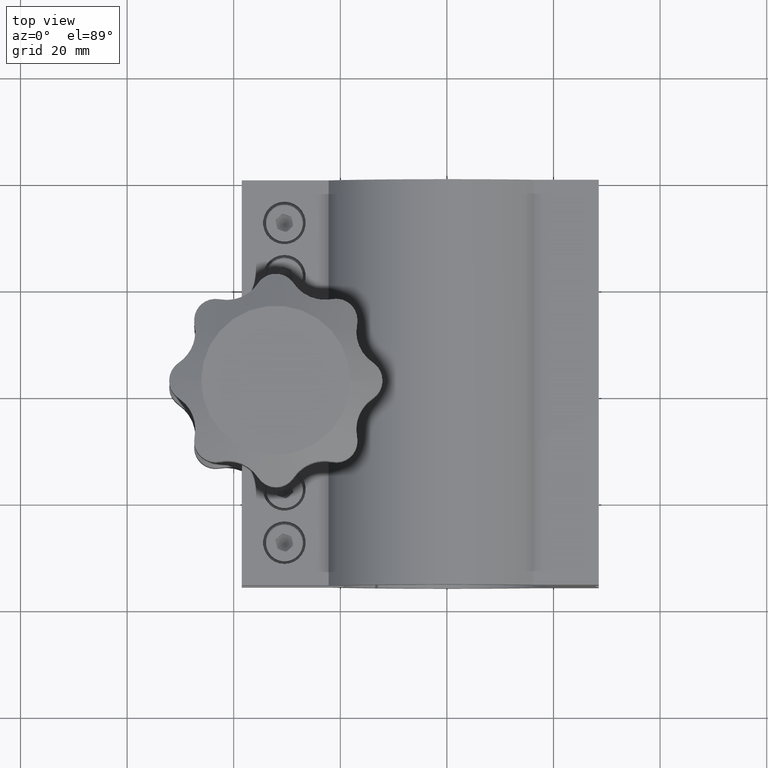
[diagram: clean part render]
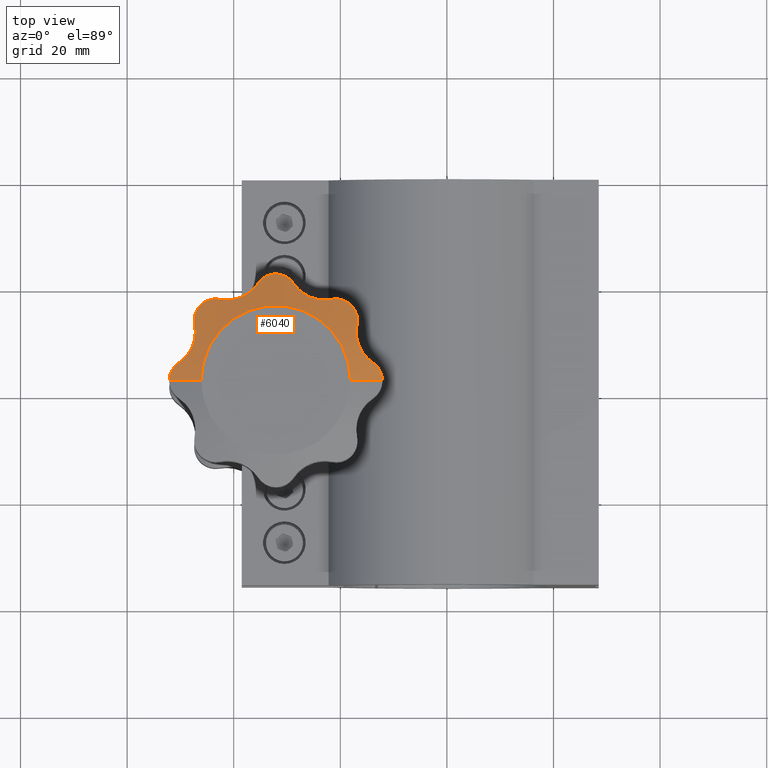
[diagram: same view with one face highlighted and labeled with its STEP entity id]
A machine part, top view. The second image highlights one B-rep face of the part: STEP entity #6040.
In plain terms, the highlighted conical surface has half-angle 63.435 deg.
Its self-contained STEP definition (entity closure, byte-faithful):
#17 = LINE ( 'NONE', #6513, #6403 ) ;
#93 = CARTESIAN_POINT ( 'NONE',  ( -32.75840555617479300, -18.05110636497569500, 37.52046013489443500 ) ) ;
#139 = DIRECTION ( 'NONE',  ( -0.8944271909999160800, 4.557184654328704800E-016, -0.4472135954999574800 ) ) ;
#198 = CARTESIAN_POINT ( 'NONE',  ( -17.29498128797715900, -24.72852698051647000, 37.55893272981340700 ) ) ;
#202 = CARTESIAN_POINT ( 'NONE',  ( -51.93334830073362700, -36.84656257091752700, 37.56690679288027500 ) ) ;
#243 = CARTESIAN_POINT ( 'NONE',  ( -47.90504890645117100, -31.92325109288683600, 39.03472159707326500 ) ) ;
#246 = CARTESIAN_POINT ( 'NONE',  ( -51.44616525070426100, -35.80293608302551400, 37.76500397221764900 ) ) ;
#285 = CARTESIAN_POINT ( 'NONE',  ( -47.56825035853536600, -31.10816862586801400, 39.03421187767023100 ) ) ;
#322 = CARTESIAN_POINT ( 'NONE',  ( -27.94840457374427000, -20.80943283846005400, 38.65869961730809500 ) ) ;
#692 = CARTESIAN_POINT ( 'NONE',  ( -47.33547936566713300, -27.47167209282341100, 38.24033585891610400 ) ) ;
#706 = EDGE_LOOP ( 'NONE', ( #2569, #6922, #10533, #2658, #2644, #6193, #1542, #1689, #4264, #2443, #8256, #4057, #7971, #4426 ) ) ;
#732 = CARTESIAN_POINT ( 'NONE',  ( -12.43301073186953200, -36.39367525027051200, 37.63407384865917700 ) ) ;
#797 = CARTESIAN_POINT ( 'NONE',  ( -30.79814125205140100, -18.21423820326806000, 37.58603638219769000 ) ) ;
#804 = CARTESIAN_POINT ( 'NONE',  ( -12.31343870608168300, -36.70036810535550100, 37.58571358947030900 ) ) ;
#826 = CARTESIAN_POINT ( 'NONE',  ( -31.76383833199643200, -18.00024806035973100, 37.50009922414819400 ) ) ;
#858 = CARTESIAN_POINT ( 'NONE',  ( -34.66672438758038100, -18.92797965623199000, 37.87824560731821300 ) ) ;
#891 = CARTESIAN_POINT ( 'NONE',  ( -46.10000000000000100, -37.99999999999999300, 40.49999999999996400 ) ) ;
#938 = CARTESIAN_POINT ( 'NONE',  ( -16.78629150101521700, -26.68629150101531500, 37.98015667156388300 ) ) ;
#960 = CARTESIAN_POINT ( 'NONE',  ( -51.88119329317201800, -36.68577337741092500, 37.58791492571297300 ) ) ;
#1012 = CARTESIAN_POINT ( 'NONE',  ( -32.09999999999994500, -38.00000000000000000, 40.49999999999996400 ) ) ;
#1032 = CARTESIAN_POINT ( 'NONE',  ( -18.02204321241740100, -23.79123233458617600, 37.49930611596541800 ) ) ;
#1033 = CARTESIAN_POINT ( 'NONE',  ( -18.09999999999989800, -38.00000000000000700, 40.49999999999996400 ) ) ;
#1065 = CARTESIAN_POINT ( 'NONE',  ( -21.25090003431771300, -22.70325044055191200, 38.12378131236729900 ) ) ;
#1116 = EDGE_CURVE ( 'NONE', #2014, #7615, #8146, .T. ) ;
#1139 = CARTESIAN_POINT ( 'NONE',  ( -24.95603898682053800, -22.64445897357253300, 39.03961434932747200 ) ) ;
#1279 = VECTOR ( 'NONE', #139, 1000.000000000000000 ) ;
#1334 = CARTESIAN_POINT ( 'NONE',  ( -14.92095314688404500, -33.87490815882829100, 38.67214230809183600 ) ) ;
#1406 = VERTEX_POINT ( 'NONE', #9871 ) ;
#1407 = EDGE_CURVE ( 'NONE', #5241, #10764, #3546, .T. ) ;
#1422 = CARTESIAN_POINT ( 'NONE',  ( -44.85279802072815200, -22.95083891127139400, 37.63736774476461700 ) ) ;
#1469 = CARTESIAN_POINT ( 'NONE',  ( -15.82382242778238400, -32.79438930931750200, 38.96184166140054800 ) ) ;
#1492 = CARTESIAN_POINT ( 'NONE',  ( -47.39795324385067900, -27.15971093928271800, 38.12596214254276100 ) ) ;
#1512 = FACE_OUTER_BOUND ( 'NONE', #706, .T. ) ;
#1542 = ORIENTED_EDGE ( 'NONE', *, *, #4671, .T. ) ;
#1656 = CARTESIAN_POINT ( 'NONE',  ( -33.23925231646453700, -18.16213688665141700, 37.56505322317966700 ) ) ;
#1689 = ORIENTED_EDGE ( 'NONE', *, *, #7601, .T. ) ;
#1707 = CARTESIAN_POINT ( 'NONE',  ( -12.65513164865497600, -35.96060845117477100, 37.72452414048564200 ) ) ;
#1734 = CARTESIAN_POINT ( 'NONE',  ( -32.43073438627175900, -18.01027900939492800, 37.50410910604374200 ) ) ;
#1761 = CARTESIAN_POINT ( 'NONE',  ( -16.78629150101521700, -26.68629150101531500, 37.98015667156388300 ) ) ;
#1766 = CARTESIAN_POINT ( 'NONE',  ( -30.95713575936925800, -18.16318857168531400, 37.56547649085300100 ) ) ;
#1835 = CARTESIAN_POINT ( 'NONE',  ( -42.62832790717669000, -22.76452063433292100, 38.24033585891610400 ) ) ;
#1877 = CARTESIAN_POINT ( 'NONE',  ( -18.13349673707107000, -23.68880557513932000, 37.50185774314765300 ) ) ;
#1881 = CARTESIAN_POINT ( 'NONE',  ( -52.09963865927252900, -37.99999999999999300, 37.50018067036367600 ) ) ;
#1882 = CARTESIAN_POINT ( 'NONE',  ( -50.82465163034928000, -35.05431335803858400, 38.02346039514766600 ) ) ;
#1913 = CARTESIAN_POINT ( 'NONE',  ( -16.94279115474832800, -25.54075307990763100, 37.69049428759792200 ) ) ;
#1917 = CARTESIAN_POINT ( 'NONE',  ( -51.53300192077797700, -35.94127359051847000, 37.72941588972657500 ) ) ;
#1937 = VERTEX_POINT ( 'NONE', #9582 ) ;
#1953 = CARTESIAN_POINT ( 'NONE',  ( -47.78056681594026900, -31.65460809510747700, 39.04337036135608200 ) ) ;
#1984 = CARTESIAN_POINT ( 'NONE',  ( -47.28702618948062800, -29.98865584032340300, 38.91577800137321900 ) ) ;
#2014 = VERTEX_POINT ( 'NONE', #5910 ) ;
#2079 = VERTEX_POINT ( 'NONE', #1033 ) ;
#2247 = CARTESIAN_POINT ( 'NONE',  ( -46.47931321446090200, -24.09531898611165700, 37.50011448571287800 ) ) ;
#2265 = AXIS2_PLACEMENT_3D ( 'NONE', #1012, #2709, #10124 ) ;
#2284 = CARTESIAN_POINT ( 'NONE',  ( -17.00881211451161000, -28.78005500583700300, 38.65869970858107500 ) ) ;
#2411 = CARTESIAN_POINT ( 'NONE',  ( -37.29467377656514100, -21.71595868580779200, 38.95968701442936300 ) ) ;
#2424 = CARTESIAN_POINT ( 'NONE',  ( -12.26273394888001700, -36.85875537139506300, 37.56529357583926300 ) ) ;
#2443 = ORIENTED_EDGE ( 'NONE', *, *, #10595, .T. ) ;
#2451 = CARTESIAN_POINT ( 'NONE',  ( -29.17884699603553500, -19.24896242957108700, 38.01230968559977400 ) ) ;
#2497 = CARTESIAN_POINT ( 'NONE',  ( -39.21091180426166300, -22.63411673686893600, 39.04180022587652800 ) ) ;
#2507 = CARTESIAN_POINT ( 'NONE',  ( -12.15151395416761000, -37.33918737790111200, 37.52062347683793300 ) ) ;
#2522 = CARTESIAN_POINT ( 'NONE',  ( -37.89220971458135500, -22.08227942649880400, 39.03813465946303300 ) ) ;
#2569 = ORIENTED_EDGE ( 'NONE', *, *, #1116, .F. ) ;
#2591 = CARTESIAN_POINT ( 'NONE',  ( -35.22739763615313500, -19.48633271645867600, 38.11267213914757700 ) ) ;
#2592 = CARTESIAN_POINT ( 'NONE',  ( -13.84647206857892200, -34.69521379476602600, 38.22485992281675500 ) ) ;
#2644 = ORIENTED_EDGE ( 'NONE', *, *, #6907, .T. ) ;
#2658 = ORIENTED_EDGE ( 'NONE', *, *, #1407, .T. ) ;
#2688 = CARTESIAN_POINT ( 'NONE',  ( -18.47935679384911400, -23.40497773994203000, 37.51941664411995000 ) ) ;
#2692 = CARTESIAN_POINT ( 'NONE',  ( -50.58263873843447600, -34.84802895879927600, 38.12591447058590400 ) ) ;
#2709 = DIRECTION ( 'NONE',  ( -5.744216728366652700E-017, 1.068136628142174300E-018, -1.000000000000000000 ) ) ;
#2795 = CARTESIAN_POINT ( 'NONE',  ( -49.85641633162009600, -34.36414461511203200, 38.43962883246744900 ) ) ;
#3015 = CARTESIAN_POINT ( 'NONE',  ( -16.78629150101521700, -26.68629150101531500, 37.98015667156388300 ) ) ;
#3017 = CARTESIAN_POINT ( 'NONE',  ( -16.19044925722366200, -32.19353673450460500, 39.03961434304864000 ) ) ;
#3028 = AXIS2_PLACEMENT_3D ( 'NONE', #7291, #8908, #10534 ) ;
#3119 = CARTESIAN_POINT ( 'NONE',  ( -16.96910337782793100, -28.09830956798036500, 38.45966632413269800 ) ) ;
#3146 = CARTESIAN_POINT ( 'NONE',  ( -45.30747206479046700, -23.15944995574653100, 37.56706851643817700 ) ) ;
#3306 = CARTESIAN_POINT ( 'NONE',  ( -36.22092508249643600, -20.81617838025024600, 38.67023647834070500 ) ) ;
#3338 = CARTESIAN_POINT ( 'NONE',  ( -32.92010242349282100, -18.08151545462373700, 37.53264634346338400 ) ) ;
#3355 = CARTESIAN_POINT ( 'NONE',  ( -13.58652559600766600, -34.87247083961992900, 38.11275532044616900 ) ) ;
#3412 = CARTESIAN_POINT ( 'NONE',  ( -28.97257494447850900, -19.48637292681023700, 38.11268948027721100 ) ) ;
#3451 = VERTEX_POINT ( 'NONE', #938 ) ;
#3480 = CARTESIAN_POINT ( 'NONE',  ( -26.89132669031026900, -21.72577786445343100, 38.96229445392982900 ) ) ;
#3522 = CARTESIAN_POINT ( 'NONE',  ( -18.72795586698635300, -23.24359436756056100, 37.54409824499433100 ) ) ;
#3546 = B_SPLINE_CURVE_WITH_KNOTS ( 'NONE', 3,
 ( #5747, #5856, #7461, #2507, #7392, #2424, #804, #732, #8239, #1707, #9930, #7428, #4980, #8349, #3355, #9174 ),
 .UNSPECIFIED., .F., .F.,
 ( 4, 2, 2, 2, 2, 2, 2, 4 ),
 ( 0.003960287535763588700, 0.004454558287999381200, 0.004948829040235172900, 0.005443099792470965400, 0.005937370544706758000, 0.006431641296942549600, 0.006925912049178341300, 0.007914453553649931600 ),
 .UNSPECIFIED. ) ;
#3599 = CARTESIAN_POINT ( 'NONE',  ( -47.48044118487156600, -30.83155257149978100, 39.01670993358917600 ) ) ;
#3822 = CARTESIAN_POINT ( 'NONE',  ( -20.10427503861102500, -22.73410328289348200, 37.79336269671950500 ) ) ;
#3900 = CARTESIAN_POINT ( 'NONE',  ( -47.24538852200786500, -27.92153760987734800, 38.40526918625391100 ) ) ;
#3918 = CARTESIAN_POINT ( 'NONE',  ( -13.84647206857892200, -34.69521379476602600, 38.22485992281675500 ) ) ;
#3938 = CARTESIAN_POINT ( 'NONE',  ( -47.33547936566713300, -27.47167209282341100, 38.24033585891610400 ) ) ;
#3947 = CARTESIAN_POINT ( 'NONE',  ( -16.85596988302090400, -27.42964335520470300, 38.22485992281597300 ) ) ;
#3973 = CARTESIAN_POINT ( 'NONE',  ( -47.39676900332204200, -26.20088793460287800, 37.84158332470187200 ) ) ;
#4057 = ORIENTED_EDGE ( 'NONE', *, *, #10538, .T. ) ;
#4145 = CARTESIAN_POINT ( 'NONE',  ( -28.79521379476579000, -19.74647206857923400, 38.22485992281703200 ) ) ;
#4176 = CARTESIAN_POINT ( 'NONE',  ( -47.19919841767013200, -29.12827557199967300, 38.74450016324930600 ) ) ;
#4178 = CARTESIAN_POINT ( 'NONE',  ( -29.65075012321522200, -18.82155421195328100, 37.83379426854019600 ) ) ;
#4257 = CARTESIAN_POINT ( 'NONE',  ( -34.27574192347813700, -18.63958989632185500, 37.75911893758380700 ) ) ;
#4264 = ORIENTED_EDGE ( 'NONE', *, *, #6597, .T. ) ;
#4289 = CARTESIAN_POINT ( 'NONE',  ( -21.52964335520773200, -22.75596988302156000, 38.22485992281708900 ) ) ;
#4335 = CARTESIAN_POINT ( 'NONE',  ( -28.79521379476579000, -19.74647206857923400, 38.22485992281703200 ) ) ;
#4351 = B_SPLINE_CURVE_WITH_KNOTS ( 'NONE', 3,
 ( #1761, #4364, #6055, #1913, #7708, #5175, #198, #7672, #9354, #8508, #6017, #1032, #1877, #2688, #3522, #9580, #7984, #3822, #10680, #6753, #1065, #4289 ),
 .UNSPECIFIED., .F., .F.,
 ( 4, 2, 2, 2, 2, 2, 2, 2, 2, 2, 4 ),
 ( 0.0007839105829735797500, 0.001675223161873578300, 0.002566535740773577000, 0.003012192030223571400, 0.003457848319673565700, 0.003903504609123560500, 0.004349160898573555300, 0.005240473477473551800, 0.006131786056373549200, 0.007023098635273545800, 0.007914411214173543200 ),
 .UNSPECIFIED. ) ;
#4364 = CARTESIAN_POINT ( 'NONE',  ( -16.78629150101522100, -26.40142105751488100, 37.89551921886251100 ) ) ;
#4402 = CARTESIAN_POINT ( 'NONE',  ( -28.40239299428870400, -20.29928775162304100, 38.45966624540668000 ) ) ;
#4426 = ORIENTED_EDGE ( 'NONE', *, *, #6687, .T. ) ;
#4473 = CARTESIAN_POINT ( 'NONE',  ( -12.10000000000001700, -38.00000000000002800, 37.49999999999999300 ) ) ;
#4491 = EDGE_CURVE ( 'NONE', #2079, #5241, #17, .T. ) ;
#4539 = B_SPLINE_CURVE_WITH_KNOTS ( 'NONE', 3,
 ( #3947, #8136, #8983, #3015 ),
 .UNSPECIFIED., .F., .F.,
 ( 4, 4 ),
 ( 2.132076626128390900E-007, 0.0007839105829735797500 ),
 .UNSPECIFIED. ) ;
#4640 = VERTEX_POINT ( 'NONE', #1835 ) ;
#4671 = EDGE_CURVE ( 'NONE', #3451, #8807, #4351, .T. ) ;
#4676 = B_SPLINE_CURVE_WITH_KNOTS ( 'NONE', 3,
 ( #7280, #5599, #9769, #9874, #10697, #4788, #8132, #9007, #1422, #4901, #3146, #5667, #9038, #2247, #9803, #8068, #5750, #6430, #10589, #8974, #3973, #7241, #1492, #3938 ),
 .UNSPECIFIED., .F., .F.,
 ( 4, 2, 2, 2, 2, 2, 2, 2, 2, 2, 2, 4 ),
 ( 2.138698642105214700E-007, 0.001000929719184339300, 0.001501287643844403600, 0.002001645568504467700, 0.002502003493164532300, 0.003002361417824596400, 0.004003077267144722900, 0.005003793116464848500, 0.005504151041124915600, 0.006004508965784981900, 0.007005224815105136200, 0.008005940664425290400 ),
 .UNSPECIFIED. ) ;
#4700 = VERTEX_POINT ( 'NONE', #6828 ) ;
#4737 = CARTESIAN_POINT ( 'NONE',  ( -47.19919841767012500, -28.37927860595761200, 38.55035417159776800 ) ) ;
#4788 = CARTESIAN_POINT ( 'NONE',  ( -44.22546935347906300, -22.76647890536097000, 37.76518380246591300 ) ) ;
#4901 = CARTESIAN_POINT ( 'NONE',  ( -45.15694850998780700, -23.08272396788176600, 37.58808820424980000 ) ) ;
#4980 = CARTESIAN_POINT ( 'NONE',  ( -13.02851694067560800, -35.43264031028016300, 37.87846908720873500 ) ) ;
#5074 = CARTESIAN_POINT ( 'NONE',  ( -32.26363370570189900, -17.99987761789956100, 37.49995104715760200 ) ) ;
#5107 = CARTESIAN_POINT ( 'NONE',  ( -29.91857331750086900, -18.63162735225915900, 37.75572514801547900 ) ) ;
#5175 = CARTESIAN_POINT ( 'NONE',  ( -17.22387635409280900, -24.86114526933710400, 37.57643872661835600 ) ) ;
#5176 = CARTESIAN_POINT ( 'NONE',  ( -48.85399775504215800, -33.37499517148442900, 38.81058220147524200 ) ) ;
#5180 = CARTESIAN_POINT ( 'NONE',  ( -51.68962325819566700, -36.22842965666536200, 37.66550537367226100 ) ) ;
#5222 = CARTESIAN_POINT ( 'NONE',  ( -47.21643865702765900, -29.41574569026144200, 38.80913972486006700 ) ) ;
#5241 = VERTEX_POINT ( 'NONE', #4473 ) ;
#5257 = CARTESIAN_POINT ( 'NONE',  ( -24.27192648757831300, -22.81008190152809700, 38.96184153804571100 ) ) ;
#5258 = CARTESIAN_POINT ( 'NONE',  ( -52.09963865927252900, -37.99999999999999300, 37.50018067036367600 ) ) ;
#5444 = EDGE_CURVE ( 'NONE', #2014, #2079, #7425, .T. ) ;
#5469 = CARTESIAN_POINT ( 'NONE',  ( -16.92432712855943700, -27.76044294330699100, 38.34719525942905000 ) ) ;
#5481 = CARTESIAN_POINT ( 'NONE',  ( -21.52964335520773200, -22.75596988302156000, 38.22485992281708900 ) ) ;
#5551 = B_SPLINE_CURVE_WITH_KNOTS ( 'NONE', 3,
 ( #3918, #8038, #1334, #1469, #3017, #8106, #7122, #8878, #2284, #3119, #5469, #9743 ),
 .UNSPECIFIED., .F., .F.,
 ( 4, 2, 2, 2, 2, 4 ),
 ( 2.514968969110977100E-007, 0.002128670117941396700, 0.004257088738985886400, 0.006385507360030376500, 0.007449716670552615500, 0.008513925981074853600 ),
 .UNSPECIFIED. ) ;
#5596 = VERTEX_POINT ( 'NONE', #9251 ) ;
#5599 = CARTESIAN_POINT ( 'NONE',  ( -42.94026814796043800, -22.70205094417412900, 38.12596980974652200 ) ) ;
#5667 = CARTESIAN_POINT ( 'NONE',  ( -45.73824124013601300, -23.41443786194445000, 37.51709815624107600 ) ) ;
#5686 = EDGE_CURVE ( 'NONE', #4640, #1937, #4676, .T. ) ;
#5747 = CARTESIAN_POINT ( 'NONE',  ( -12.10000000000001700, -38.00000000000002800, 37.49999999999999300 ) ) ;
#5750 = CARTESIAN_POINT ( 'NONE',  ( -47.01633345922389400, -24.94105235144986900, 37.58778657505536100 ) ) ;
#5811 = CARTESIAN_POINT ( 'NONE',  ( -41.29270235043173200, -22.93565509200136500, 38.68197548295538700 ) ) ;
#5842 = CARTESIAN_POINT ( 'NONE',  ( -34.13825877744383100, -18.55445544511341500, 37.72424744362870500 ) ) ;
#5856 = CARTESIAN_POINT ( 'NONE',  ( -12.10000000000001600, -37.83350509056443700, 37.50000000000000000 ) ) ;
#5881 = CARTESIAN_POINT ( 'NONE',  ( -30.34560456405141300, -18.40163428476001400, 37.66191565780241700 ) ) ;
#5910 = CARTESIAN_POINT ( 'NONE',  ( -46.09999999999994500, -37.99999999999999300, 40.49999999999996400 ) ) ;
#6017 = CARTESIAN_POINT ( 'NONE',  ( -17.81326709489612600, -24.00607470777609700, 37.50102194031765600 ) ) ;
#6040 = ADVANCED_FACE ( 'NONE', ( #1512 ), #8015, .T. ) ;
#6047 = VERTEX_POINT ( 'NONE', #10566 ) ;
#6055 = CARTESIAN_POINT ( 'NONE',  ( -16.81742696439633300, -26.10934481720780600, 37.81913595337673700 ) ) ;
#6088 = CARTESIAN_POINT ( 'NONE',  ( -48.67039366449299100, -33.14918560032052900, 38.86817951116535100 ) ) ;
#6134 = CARTESIAN_POINT ( 'NONE',  ( -48.33500304504651300, -32.67954946959076800, 38.95881344617950500 ) ) ;
#6193 = ORIENTED_EDGE ( 'NONE', *, *, #7769, .T. ) ;
#6403 = VECTOR ( 'NONE', #7368, 1000.000000000000000 ) ;
#6430 = CARTESIAN_POINT ( 'NONE',  ( -47.14878044121587700, -25.24615127184601000, 37.63717544867557100 ) ) ;
#6513 = CARTESIAN_POINT ( 'NONE',  ( -18.09999999999989800, -38.00000000000000700, 40.49999999999996400 ) ) ;
#6597 = EDGE_CURVE ( 'NONE', #6047, #7412, #9736, .T. ) ;
#6621 = CARTESIAN_POINT ( 'NONE',  ( -33.70477250926373400, -18.33232502850871300, 37.63379586593644200 ) ) ;
#6622 = CARTESIAN_POINT ( 'NONE',  ( -42.62832790717669000, -22.76452063433292100, 38.24033585891610400 ) ) ;
#6657 = CARTESIAN_POINT ( 'NONE',  ( -35.40478620523412400, -19.74647206857902400, 38.22485992281691800 ) ) ;
#6687 = EDGE_CURVE ( 'NONE', #5596, #7615, #8755, .T. ) ;
#6688 = CARTESIAN_POINT ( 'NONE',  ( -31.43727512282957200, -18.04148535773647700, 37.51655466047846900 ) ) ;
#6724 = CARTESIAN_POINT ( 'NONE',  ( -30.49297567660139300, -18.33335283873527600, 37.63421277690572000 ) ) ;
#6753 = CARTESIAN_POINT ( 'NONE',  ( -20.96848050212808400, -22.68021743918748700, 38.03226716161989200 ) ) ;
#6763 = CARTESIAN_POINT ( 'NONE',  ( -52.05752426620990300, -37.33173219567212400, 37.51698547041274200 ) ) ;
#6800 = CARTESIAN_POINT ( 'NONE',  ( -52.09963865927255000, -37.66222527571014200, 37.50018067036367600 ) ) ;
#6828 = CARTESIAN_POINT ( 'NONE',  ( -16.85596988302090400, -27.42964335520470300, 38.22485992281597300 ) ) ;
#6878 = CARTESIAN_POINT ( 'NONE',  ( -48.18181524195390600, -32.43446891246431800, 38.99239717512207200 ) ) ;
#6907 = EDGE_CURVE ( 'NONE', #10764, #4700, #5551, .T. ) ;
#6922 = ORIENTED_EDGE ( 'NONE', *, *, #5444, .T. ) ;
#6947 = CARTESIAN_POINT ( 'NONE',  ( -47.33982646533559800, -30.27179680078583600, 38.95749352928426400 ) ) ;
#6979 = CARTESIAN_POINT ( 'NONE',  ( -21.52964335520773200, -22.75596988302156000, 38.22485992281708900 ) ) ;
#7122 = CARTESIAN_POINT ( 'NONE',  ( -16.90929895912277900, -30.17547516606984500, 38.96229440099499900 ) ) ;
#7241 = CARTESIAN_POINT ( 'NONE',  ( -47.42317277148750800, -26.84308388291383800, 38.02363117736457800 ) ) ;
#7280 = CARTESIAN_POINT ( 'NONE',  ( -42.62832790717669000, -22.76452063433292100, 38.24033585891610400 ) ) ;
#7291 = CARTESIAN_POINT ( 'NONE',  ( -32.09999999999994500, -38.00000000000000000, 40.49999999999996400 ) ) ;
#7368 = DIRECTION ( 'NONE',  ( 0.8944271909999160800, -5.642988346417976200E-016, -0.4472135954999575900 ) ) ;
#7392 = CARTESIAN_POINT ( 'NONE',  ( -12.18199555004972200, -37.17763075229710500, 37.53283897366441100 ) ) ;
#7412 = VERTEX_POINT ( 'NONE', #10719 ) ;
#7425 = CIRCLE ( 'NONE', #2265, 14.00000000000005000 ) ;
#7428 = CARTESIAN_POINT ( 'NONE',  ( -12.92700158500892500, -35.55904693091233800, 37.83638424736696500 ) ) ;
#7447 = CARTESIAN_POINT ( 'NONE',  ( -34.54019230307984100, -18.82641046975630800, 37.83613952477256200 ) ) ;
#7461 = CARTESIAN_POINT ( 'NONE',  ( -12.11050873953516100, -37.66657105954498500, 37.50420100701810400 ) ) ;
#7528 = CARTESIAN_POINT ( 'NONE',  ( -35.02102367627738700, -19.24879063320791100, 38.01223660148906400 ) ) ;
#7539 = EDGE_CURVE ( 'NONE', #1406, #5596, #8135, .T. ) ;
#7601 = EDGE_CURVE ( 'NONE', #8807, #6047, #7815, .T. ) ;
#7615 = VERTEX_POINT ( 'NONE', #1881 ) ;
#7636 = CARTESIAN_POINT ( 'NONE',  ( -51.15176998057170700, -35.40968513224929400, 37.88670112199512400 ) ) ;
#7672 = CARTESIAN_POINT ( 'NONE',  ( -17.44989216485910100, -24.47483759213886100, 37.53086793582869500 ) ) ;
#7708 = CARTESIAN_POINT ( 'NONE',  ( -17.03595072964976600, -25.26404472820859900, 37.63783749370301000 ) ) ;
#7769 = EDGE_CURVE ( 'NONE', #4700, #3451, #4539, .T. ) ;
#7789 = CARTESIAN_POINT ( 'NONE',  ( -28.60963906092752000, -20.02871853246509900, 38.34719524211927700 ) ) ;
#7815 = B_SPLINE_CURVE_WITH_KNOTS ( 'NONE', 3,
 ( #6979, #7827, #8552, #5257, #1139, #9317, #3480, #10259, #322, #4402, #7789, #4335 ),
 .UNSPECIFIED., .F., .F.,
 ( 4, 2, 2, 2, 2, 4 ),
 ( 2.145863560860654900E-007, 0.002128633184701739600, 0.004257051783047393000, 0.006385470381393045500, 0.007449679680565866500, 0.008513888979738686700 ),
 .UNSPECIFIED. ) ;
#7827 = CARTESIAN_POINT ( 'NONE',  ( -22.19089210380487400, -22.89261196087019800, 38.46940100192942000 ) ) ;
#7971 = ORIENTED_EDGE ( 'NONE', *, *, #7539, .T. ) ;
#7984 = CARTESIAN_POINT ( 'NONE',  ( -19.53860324330461400, -22.87470230777550700, 37.67028065277777000 ) ) ;
#8015 = CONICAL_SURFACE ( 'NONE', #3028, 14.00000000000005000, 1.107148717794089500 ) ;
#8038 = CARTESIAN_POINT ( 'NONE',  ( -14.41066563442163300, -34.32426115510121900, 38.46940080767090800 ) ) ;
#8068 = CARTESIAN_POINT ( 'NONE',  ( -46.93961310875495500, -24.79080392035385900, 37.56684448148188700 ) ) ;
#8106 = CARTESIAN_POINT ( 'NONE',  ( -16.74141061492605300, -30.86623930095834800, 39.04038282518990900 ) ) ;
#8132 = CARTESIAN_POINT ( 'NONE',  ( -44.38462221413450200, -22.80284501860700200, 37.72960049356522200 ) ) ;
#8135 = B_SPLINE_CURVE_WITH_KNOTS ( 'NONE', 3,
 ( #9162, #4176, #5222, #1984, #6947, #3599, #285, #1953, #243, #6878, #6134, #6088, #5176, #10293, #2795, #10146 ),
 .UNSPECIFIED., .F., .F.,
 ( 4, 2, 2, 2, 2, 2, 2, 4 ),
 ( 0.001445184654487998100, 0.002318056163042956500, 0.003190927671597914500, 0.004063799180152872500, 0.004936670688707820600, 0.005809542197262770400, 0.006682413705817718400, 0.008428156722927616200 ),
 .UNSPECIFIED. ) ;
#8136 = CARTESIAN_POINT ( 'NONE',  ( -16.80962284197195100, -27.18459280970826700, 38.13599907208907800 ) ) ;
#8146 = LINE ( 'NONE', #891, #1279 ) ;
#8239 = CARTESIAN_POINT ( 'NONE',  ( -12.50151586287641200, -36.24581991734363800, 37.66186732320727500 ) ) ;
#8256 = ORIENTED_EDGE ( 'NONE', *, *, #5686, .T. ) ;
#8338 = CARTESIAN_POINT ( 'NONE',  ( -35.77400903943110700, -20.30803471874467500, 38.46826047838218400 ) ) ;
#8349 = CARTESIAN_POINT ( 'NONE',  ( -13.34914336907245800, -35.07867091265923400, 38.01238578080710100 ) ) ;
#8402 = CARTESIAN_POINT ( 'NONE',  ( -35.40478620523412400, -19.74647206857902400, 38.22485992281691800 ) ) ;
#8406 = B_SPLINE_CURVE_WITH_KNOTS ( 'NONE', 3,
 ( #6657, #8338, #3306, #2411, #2522, #2497, #9163, #5811, #9897, #6622 ),
 .UNSPECIFIED., .F., .F.,
 ( 4, 2, 2, 2, 4 ),
 ( 2.514968968866190400E-007, 0.002118744996039086800, 0.004237238495181286500, 0.006355731994323486300, 0.008474225493465686900 ),
 .UNSPECIFIED. ) ;
#8438 = CARTESIAN_POINT ( 'NONE',  ( -50.31776283181115200, -34.67154128362936700, 38.24033585891610400 ) ) ;
#8508 = CARTESIAN_POINT ( 'NONE',  ( -17.71575373318421100, -24.11845504438328200, 37.50522552208769900 ) ) ;
#8513 = CARTESIAN_POINT ( 'NONE',  ( -51.75941062088810400, -36.37724670895966000, 37.63718249476184500 ) ) ;
#8552 = CARTESIAN_POINT ( 'NONE',  ( -22.86946047692452000, -22.93569900874313900, 38.67214242902268500 ) ) ;
#8755 = B_SPLINE_CURVE_WITH_KNOTS ( 'NONE', 3,
 ( #8438, #2692, #1882, #7636, #9281, #246, #1917, #5180, #8513, #960, #202, #6763, #6800, #5258 ),
 .UNSPECIFIED., .F., .F.,
 ( 4, 2, 2, 2, 2, 2, 4 ),
 ( 2.519870533801398400E-007, 0.001001453526276150500, 0.001502054295887535700, 0.002002655065498920800, 0.002503255835110305800, 0.003003856604721691200, 0.004005058143944468000 ),
 .UNSPECIFIED. ) ;
#8807 = VERTEX_POINT ( 'NONE', #5481 ) ;
#8878 = CARTESIAN_POINT ( 'NONE',  ( -17.00406875406509100, -29.12517083562089200, 38.74575812781789400 ) ) ;
#8908 = DIRECTION ( 'NONE',  ( -5.744216728366652700E-017, 1.068136628142174300E-018, -1.000000000000000000 ) ) ;
#8940 = B_SPLINE_CURVE_WITH_KNOTS ( 'NONE', 3,
 ( #692, #3900, #4737, #9758 ),
 .UNSPECIFIED., .F., .F.,
 ( 4, 4 ),
 ( 2.141342634865595500E-007, 0.001445184654487998100 ),
 .UNSPECIFIED. ) ;
#8974 = CARTESIAN_POINT ( 'NONE',  ( -47.34347505883442900, -25.87294497304557300, 37.76170017255969900 ) ) ;
#8983 = CARTESIAN_POINT ( 'NONE',  ( -16.78629150101521700, -26.93676728713122200, 38.05457517648046900 ) ) ;
#9007 = CARTESIAN_POINT ( 'NONE',  ( -44.69828612999259600, -22.89502649657290300, 37.66569268401078600 ) ) ;
#9038 = CARTESIAN_POINT ( 'NONE',  ( -46.00166590177387600, -23.61814102786626500, 37.50024724159735000 ) ) ;
#9162 = CARTESIAN_POINT ( 'NONE',  ( -47.19919841767012500, -28.84621229782715400, 38.67138711132055600 ) ) ;
#9163 = CARTESIAN_POINT ( 'NONE',  ( -39.89794573085686100, -22.80387124742842200, 38.96594691532590100 ) ) ;
#9174 = CARTESIAN_POINT ( 'NONE',  ( -13.84647206857892200, -34.69521379476602600, 38.22485992281675500 ) ) ;
#9251 = CARTESIAN_POINT ( 'NONE',  ( -50.31776283181115200, -34.67154128362936700, 38.24033585891610400 ) ) ;
#9281 = CARTESIAN_POINT ( 'NONE',  ( -51.25541067797124800, -35.53681198573129100, 37.84370096366762200 ) ) ;
#9317 = CARTESIAN_POINT ( 'NONE',  ( -26.28416735945039700, -22.09550692938512400, 39.04038281899801900 ) ) ;
#9354 = CARTESIAN_POINT ( 'NONE',  ( -17.53406576480384200, -24.35283612059564000, 37.52014831606356900 ) ) ;
#9580 = CARTESIAN_POINT ( 'NONE',  ( -19.26113412668364000, -22.97646615222427600, 37.61997098023979900 ) ) ;
#9582 = CARTESIAN_POINT ( 'NONE',  ( -47.33547936566713300, -27.47167209282341100, 38.24033585891610400 ) ) ;
#9736 = B_SPLINE_CURVE_WITH_KNOTS ( 'NONE', 3,
 ( #4145, #3412, #2451, #4178, #5107, #5881, #6724, #797, #1766, #6688, #826, #5074, #1734, #93, #3338, #1656, #9991, #6621, #9950, #5842, #4257, #7447, #858, #7528, #2591, #8402 ),
 .UNSPECIFIED., .F., .F.,
 ( 4, 2, 2, 2, 2, 2, 2, 2, 2, 2, 2, 2, 4 ),
 ( 2.535578231130869400E-007, 0.0009895285573015355800, 0.001978803556779958000, 0.002473441056519169400, 0.002968078556258379900, 0.003957353555736790200, 0.004451991055476005500, 0.004946628555215220800, 0.005441266054954436100, 0.005935903554693651400, 0.006430541054432867600, 0.006925178554172082900, 0.007914453553650514400 ),
 .UNSPECIFIED. ) ;
#9743 = CARTESIAN_POINT ( 'NONE',  ( -16.85596988302090400, -27.42964335520470300, 38.22485992281597300 ) ) ;
#9758 = CARTESIAN_POINT ( 'NONE',  ( -47.19919841767012500, -28.84621229782715400, 38.67138711132055600 ) ) ;
#9769 = CARTESIAN_POINT ( 'NONE',  ( -43.25710625937504300, -22.67678188941502500, 38.02355978083539900 ) ) ;
#9803 = CARTESIAN_POINT ( 'NONE',  ( -46.68478337521381100, -24.36072772368684300, 37.51702702024472600 ) ) ;
#9871 = CARTESIAN_POINT ( 'NONE',  ( -47.19919841767012500, -28.84621229782715400, 38.67138711132055600 ) ) ;
#9874 = CARTESIAN_POINT ( 'NONE',  ( -43.73945824390319400, -22.69669351951546000, 37.88685030365017100 ) ) ;
#9897 = CARTESIAN_POINT ( 'NONE',  ( -41.96868897340817000, -22.89662106390779800, 38.48217800965601000 ) ) ;
#9930 = CARTESIAN_POINT ( 'NONE',  ( -12.74024568565804600, -35.82325431566177800, 37.75938828361666600 ) ) ;
#9950 = CARTESIAN_POINT ( 'NONE',  ( -33.85277306221463800, -18.40082471725672200, 37.66158631352323000 ) ) ;
#9991 = CARTESIAN_POINT ( 'NONE',  ( -33.39777020126911100, -18.21279430084789700, 37.58545362428016300 ) ) ;
#10124 = DIRECTION ( 'NONE',  ( 1.000000000000000000, -4.956352788505145500E-016, 0.0000000000000000000 ) ) ;
#10146 = CARTESIAN_POINT ( 'NONE',  ( -50.31776283181115200, -34.67154128362936700, 38.24033585891610400 ) ) ;
#10259 = CARTESIAN_POINT ( 'NONE',  ( -27.70101675018858200, -21.05011257352799700, 38.74575806462164700 ) ) ;
#10293 = CARTESIAN_POINT ( 'NONE',  ( -49.43210726996743200, -34.00363604922228000, 38.61011625043918400 ) ) ;
#10533 = ORIENTED_EDGE ( 'NONE', *, *, #4491, .T. ) ;
#10534 = DIRECTION ( 'NONE',  ( 1.000000000000000000, -4.956352788505145500E-016, 0.0000000000000000000 ) ) ;
#10538 = EDGE_CURVE ( 'NONE', #1937, #1406, #8940, .T. ) ;
#10566 = CARTESIAN_POINT ( 'NONE',  ( -28.79521379476579000, -19.74647206857923400, 38.22485992281703200 ) ) ;
#10589 = CARTESIAN_POINT ( 'NONE',  ( -47.20479314949079000, -25.40112276749178100, 37.66557426353955400 ) ) ;
#10595 = EDGE_CURVE ( 'NONE', #7412, #4640, #8406, .T. ) ;
#10680 = CARTESIAN_POINT ( 'NONE',  ( -20.39658133783738200, -22.69505758032209600, 37.86728663349210700 ) ) ;
#10697 = CARTESIAN_POINT ( 'NONE',  ( -43.90255016953159400, -22.71326742720494700, 37.84386468517838900 ) ) ;
#10719 = CARTESIAN_POINT ( 'NONE',  ( -35.40478620523412400, -19.74647206857902400, 38.22485992281691800 ) ) ;
#10764 = VERTEX_POINT ( 'NONE', #2592 ) ;